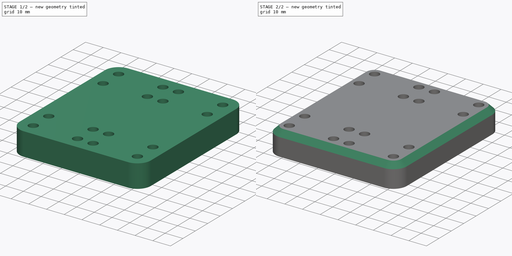
[diagram: build sequence overview — one tinted view per stage of 2, left to right]
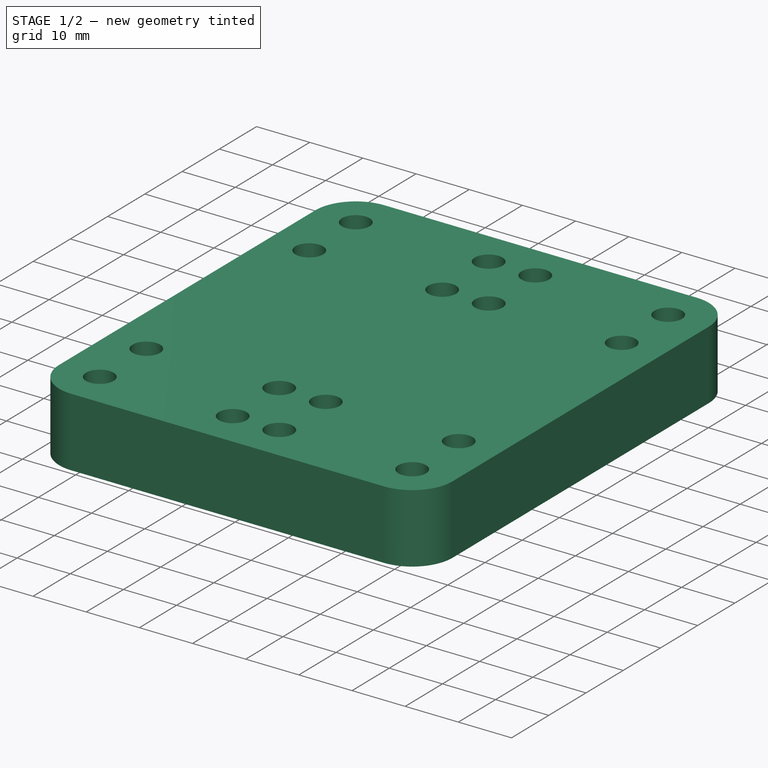
[diagram: stage 1 of 2 — iso view after this stage's code; geometry added in this stage tinted green]
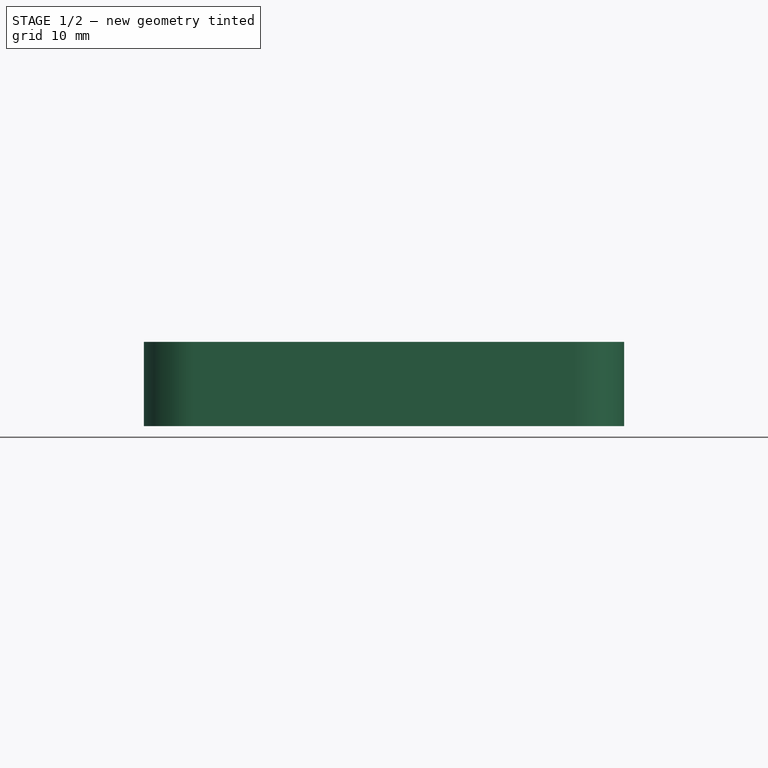
[diagram: stage 1 of 2 — front view after this stage's code; geometry added in this stage tinted green]
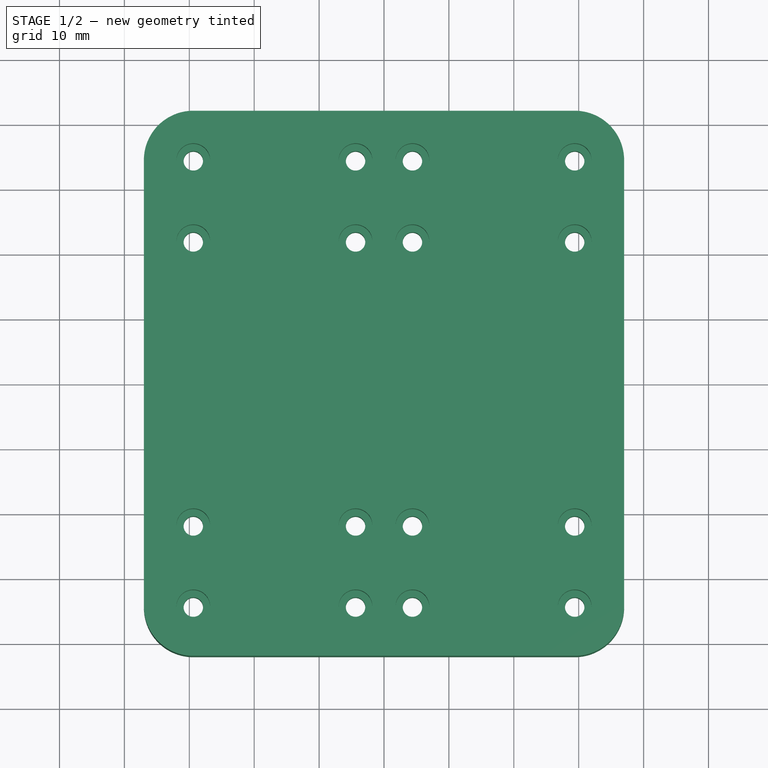
[diagram: stage 1 of 2 — top view after this stage's code; geometry added in this stage tinted green]
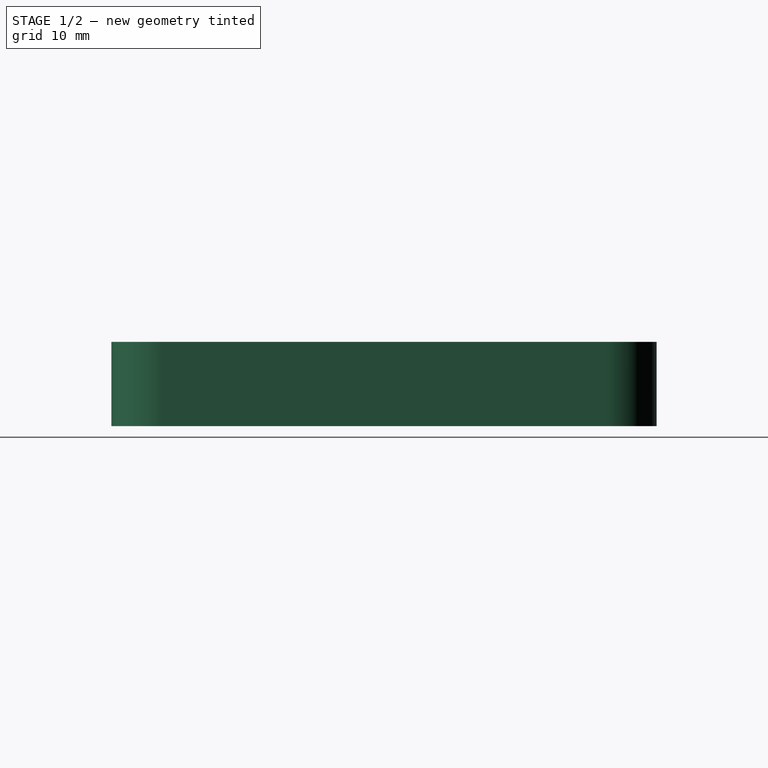
[diagram: stage 1 of 2 — right view after this stage's code; geometry added in this stage tinted green]
FCSTD DOCUMENT  (FreeCAD 0.16R6712 (Git))
Label: Plate_001
License: All rights reserved
LicenseURL: http://en.wikipedia.org/wiki/All_rights_reserved
objects: Sketcher::SketchObject×2, PartDesign::Pad×1, PartDesign::Pocket×1, PartDesign::Chamfer×1
note: 7 computed .brp shape members not serialized (recipe doc carries the construction recipe); baked Part::Feature solids carry a one-line shape summary decoded from their .brp

FEATURE [Sketcher::SketchObject] Sketch002
  Placement = pos=(0,0,13) rot=(0,0,1;0rad)
  sketch-geometry (42):
    g0: Circle CenterX=-29.384 CenterY=-34.384 CenterZ=0 NormalX=0 NormalY=0 NormalZ=1 Radius=1.6
    g1: Circle CenterX=-4.384 CenterY=-34.384 CenterZ=0 NormalX=0 NormalY=0 NormalZ=1 Radius=1.6
    g2: LineSegment [constr] StartX=-29.384 StartY=-34.384 StartZ=0 EndX=-4.384 EndY=-34.384 EndZ=0
    g3: LineSegment [constr] StartX=-4.384 StartY=-34.384 StartZ=0 EndX=-4.384 EndY=-21.884 EndZ=0
    g4: LineSegment [constr] StartX=-4.384 StartY=-21.884 StartZ=0 EndX=-29.384 EndY=-21.884 EndZ=0
    g5: LineSegment [constr] StartX=-29.384 StartY=-21.884 StartZ=0 EndX=-29.384 EndY=-34.384 EndZ=0
    g6: Circle CenterX=-29.384 CenterY=-21.884 CenterZ=0 NormalX=0 NormalY=0 NormalZ=1 Radius=1.6
    g7: Circle CenterX=-4.384 CenterY=-21.884 CenterZ=0 NormalX=0 NormalY=0 NormalZ=1 Radius=1.6
    g8: LineSegment [constr] StartX=4.384 StartY=-34.384 StartZ=0 EndX=4.384 EndY=-21.884 EndZ=0
    g9: LineSegment [constr] StartX=4.384 StartY=-34.384 StartZ=0 EndX=29.384 EndY=-34.384 EndZ=0
    g10: LineSegment [constr] StartX=29.384 StartY=-34.384 StartZ=0 EndX=29.384 EndY=-21.884 EndZ=0
    g11: LineSegment [constr] StartX=29.384 StartY=-21.884 StartZ=0 EndX=4.384 EndY=-21.884 EndZ=0
    g12: Circle CenterX=4.384 CenterY=-21.884 CenterZ=0 NormalX=0 NormalY=0 NormalZ=1 Radius=1.6
    g13: Circle CenterX=4.384 CenterY=-34.384 CenterZ=0 NormalX=0 NormalY=0 NormalZ=1 Radius=1.6
    g14: Circle CenterX=29.384 CenterY=-34.384 CenterZ=0 NormalX=0 NormalY=0 NormalZ=1 Radius=1.6
    g15: Circle CenterX=29.384 CenterY=-21.884 CenterZ=0 NormalX=0 NormalY=0 NormalZ=1 Radius=1.6
    g16: LineSegment StartX=-29.384 StartY=42 StartZ=0 EndX=29.384 EndY=42 EndZ=0
    g17: LineSegment StartX=37 StartY=34.384 StartZ=0 EndX=37 EndY=-34.384 EndZ=0
    g18: ArcOfCircle CenterX=-29.384 CenterY=34.384 CenterZ=0 NormalX=0 NormalY=0 NormalZ=1 Radius=7.616 StartAngle=1.5708 EndAngle=3.14159
    g19: ArcOfCircle CenterX=29.384 CenterY=34.384 CenterZ=0 NormalX=0 NormalY=0 NormalZ=1 Radius=7.616 StartAngle=0 EndAngle=1.5708
    g20: ArcOfCircle CenterX=29.384 CenterY=-34.384 CenterZ=0 NormalX=0 NormalY=0 NormalZ=1 Radius=7.616 StartAngle=4.71239 EndAngle=6.28319
    g21: ArcOfCircle CenterX=-29.384 CenterY=-34.384 CenterZ=0 NormalX=0 NormalY=0 NormalZ=1 Radius=7.616 StartAngle=3.14159 EndAngle=4.71239
    g22: LineSegment StartX=-29.384 StartY=-42 StartZ=0 EndX=0 EndY=-42 EndZ=0
    g23: LineSegment StartX=0 StartY=-42 StartZ=0 EndX=29.384 EndY=-42 EndZ=0
    g24: LineSegment StartX=-37 StartY=34.384 StartZ=0 EndX=-37 EndY=0 EndZ=0
    g25: LineSegment StartX=-37 StartY=-34.384 StartZ=0 EndX=-37 EndY=0 EndZ=0
    g26: LineSegment [constr] StartX=-29.384 StartY=34.384 StartZ=0 EndX=-4.384 EndY=34.384 EndZ=0
    g27: LineSegment [constr] StartX=-4.384 StartY=34.384 StartZ=0 EndX=-4.384 EndY=21.884 EndZ=0
    g28: LineSegment [constr] StartX=-4.384 StartY=21.884 StartZ=0 EndX=-29.384 EndY=21.884 EndZ=0
    g29: LineSegment [constr] StartX=-29.384 StartY=21.884 StartZ=0 EndX=-29.384 EndY=34.384 EndZ=0
    g30: LineSegment [constr] StartX=29.384 StartY=34.384 StartZ=0 EndX=4.384 EndY=34.384 EndZ=0
    g31: LineSegment [constr] StartX=4.384 StartY=34.384 StartZ=0 EndX=4.384 EndY=21.884 EndZ=0
    g32: LineSegment [constr] StartX=4.384 StartY=21.884 StartZ=0 EndX=29.384 EndY=21.884 EndZ=0
    g33: LineSegment [constr] StartX=29.384 StartY=21.884 StartZ=0 EndX=29.384 EndY=34.384 EndZ=0
    g34: Circle CenterX=-29.384 CenterY=21.884 CenterZ=0 NormalX=0 NormalY=0 NormalZ=1 Radius=1.6
    g35: Circle CenterX=-4.384 CenterY=21.884 CenterZ=0 NormalX=0 NormalY=0 NormalZ=1 Radius=1.5
    g36: Circle CenterX=-4.384 CenterY=34.384 CenterZ=0 NormalX=0 NormalY=0 NormalZ=1 Radius=1.5
    g37: Circle CenterX=4.384 CenterY=34.384 CenterZ=0 NormalX=0 NormalY=0 NormalZ=1 Radius=1.5
    g38: Circle CenterX=4.384 CenterY=21.884 CenterZ=0 NormalX=0 NormalY=0 NormalZ=1 Radius=1.5
    g39: Circle CenterX=29.384 CenterY=21.884 CenterZ=0 NormalX=0 NormalY=0 NormalZ=1 Radius=1.5
    g40: Circle CenterX=29.384 CenterY=34.384 CenterZ=0 NormalX=0 NormalY=0 NormalZ=1 Radius=1.5
    g41: Circle CenterX=-29.384 CenterY=34.384 CenterZ=0 NormalX=0 NormalY=0 NormalZ=1 Radius=1.6
  constraints (104):
    c: Radius(g0) = 1.6
    c: DistanceX(g0,g1) = 25
    c: Equal(g0,g1)
    c: Coincident(g2,g3)
    c: Coincident(g3,g4)
    c: Coincident(g4,g5)
    c: Coincident(g5,g2)
    c: Horizontal(g2)
    c: Horizontal(g4)
    c: Vertical(g3)
    c: Vertical(g5)
    c: Coincident(g2,g1)
    c: DistanceY(g5,g5) = 12.5
    c: Coincident(g2,g0)
    c: Coincident(g6,g4)
    c: Coincident(g7,g3)
    c: Equal(g6,g7)
    c: Equal(g7,g0)
    c: Vertical(g8)
    c: Coincident(g9,g10)
    c: Coincident(g10,g11)
    c: Horizontal(g9)
    c: Horizontal(g11)
    c: Vertical(g10)
    c: Coincident(g11,g8)
    c: Coincident(g12,g8)
    c: Coincident(g14,g9)
    c: Coincident(g15,g10)
    c: Equal(g15,g14)
    c: Equal(g14,g13)
    c: Equal(g13,g12)
    c: Equal(g12,g0)
    c: Equal(g8,g5)
    c: Equal(g11,g4)
    c: Coincident(g8,g9)
    c: Coincident(g8,g13)
    c: Horizontal(g16)
    c: Vertical(g17)
    c: Tangent(g16,g18) = 1.5708
    c: Tangent(g16,g19) = 1.5708
    c: Tangent(g17,g19) = 1.5708
    c: Tangent(g17,g20) = 1.5708
    c: Equal(g18,g19)
    c: Equal(g19,g20)
    c: Equal(g20,g21)
    c: Radius(g19) = 7.616
    c: Coincident(g22,g21)
    c: Horizontal(g22)
    c: Coincident(g23,g22)
    c: Coincident(g23,g20)
    c: Horizontal(g23)
    c: Equal(g23,g22)
    c: PointOnObject(g22,g-2)
    c: Coincident(g24,g18)
    c: PointOnObject(g24,g-1)
    c: Vertical(g24)
    c: Coincident(g25,g21)
    c: Coincident(g25,g24)
    c: Vertical(g25)
    c: Tangent(g21,g22)
    c: Tangent(g23,g20)
    c: Tangent(g18,g24)
    c: Tangent(g21,g25)
    c: Equal(g24,g25)
    c: Coincident(g21,g0)
    c: Coincident(g26,g27)
    c: Coincident(g27,g28)
    c: Coincident(g28,g29)
    c: Coincident(g29,g26)
    c: Horizontal(g26)
    c: Horizontal(g28)
    c: Vertical(g27)
    c: Vertical(g29)
    c: Coincident(g26,g18)
    c: Coincident(g30,g31)
    c: Coincident(g31,g32)
    c: Coincident(g32,g33)
    c: Coincident(g33,g30)
    c: Horizontal(g30)
    c: Horizontal(g32)
    c: Vertical(g31)
    c: Vertical(g33)
    c: Coincident(g30,g19)
    c: Coincident(g9,g20)
    c: Equal(g5,g29)
    c: Equal(g29,g31)
    c: Equal(g28,g32)
    c: Equal(g32,g4)
    c: DistanceY(g20,g16) = 84
    c: DistanceX(g21,g17) = 74
    c: Coincident(g34,g28)
    c: Coincident(g35,g27)
    c: Coincident(g36,g26)
    c: Coincident(g37,g30)
    c: Coincident(g39,g32)
    c: Coincident(g40,g19)
    c: Equal(g39,g40)
    c: Equal(g40,g37)
    c: Equal(g37,g38)
    c: Equal(g38,g36)
    c: Equal(g36,g35)
    c: Equal(g34,g0)
    c: Coincident(g41,g18)
    c: Equal(g41,g34)
FEATURE [PartDesign::Pad] Pad
  Length = 13
  Length2 = 100
  Placement = pos=(0,0,13) rot=(0,0,1;0rad)
  Sketch = -> Sketch002
  Type = 0
FEATURE [Sketcher::SketchObject] Sketch
  ExternalGeometry = -> [Pad]
  Placement = pos=(0,0,26) rot=(0,0,1;0rad)
  Support = -> Pad [Face28]
  sketch-geometry (33):
    g0: Circle CenterX=-29.384 CenterY=34.384 CenterZ=0 NormalX=0 NormalY=0 NormalZ=1 Radius=2.6
    g1: Circle CenterX=4.384 CenterY=-34.384 CenterZ=0 NormalX=0 NormalY=0 NormalZ=1 Radius=2.6
    g2: Circle CenterX=29.384 CenterY=21.884 CenterZ=0 NormalX=0 NormalY=0 NormalZ=1 Radius=2.6
    g3: Circle CenterX=-29.384 CenterY=21.884 CenterZ=0 NormalX=0 NormalY=0 NormalZ=1 Radius=2.6
    g4: Circle CenterX=-29.384 CenterY=-34.384 CenterZ=0 NormalX=0 NormalY=0 NormalZ=1 Radius=2.6
    g5: Circle CenterX=4.384 CenterY=-21.884 CenterZ=0 NormalX=0 NormalY=0 NormalZ=1 Radius=2.6
    g6: Circle CenterX=29.384 CenterY=-34.384 CenterZ=0 NormalX=0 NormalY=0 NormalZ=1 Radius=2.6
    g7: Circle CenterX=-29.384 CenterY=-21.884 CenterZ=0 NormalX=0 NormalY=0 NormalZ=1 Radius=2.6
    g8: Circle CenterX=-29.384 CenterY=-34.384 CenterZ=0 NormalX=0 NormalY=0 NormalZ=1 Radius=2.6
    g9: Circle CenterX=-4.384 CenterY=34.384 CenterZ=0 NormalX=0 NormalY=0 NormalZ=1 Radius=2.6
    g10: Circle CenterX=4.384 CenterY=34.384 CenterZ=0 NormalX=0 NormalY=0 NormalZ=1 Radius=2.6
    g11: Circle CenterX=29.384 CenterY=34.384 CenterZ=0 NormalX=0 NormalY=0 NormalZ=1 Radius=2.6
    g12: Circle CenterX=4.384 CenterY=21.884 CenterZ=0 NormalX=0 NormalY=0 NormalZ=1 Radius=2.6
    g13: Circle CenterX=-4.384 CenterY=21.884 CenterZ=0 NormalX=0 NormalY=0 NormalZ=1 Radius=2.6
    g14: LineSegment [constr] StartX=-29.384 StartY=-34.384 StartZ=0 EndX=-4.384 EndY=-34.384 EndZ=0
    g15: LineSegment [constr] StartX=-4.384 StartY=-34.384 StartZ=0 EndX=-4.384 EndY=-21.884 EndZ=0
    g16: LineSegment [constr] StartX=-4.384 StartY=-21.884 StartZ=0 EndX=-29.384 EndY=-21.884 EndZ=0
    g17: LineSegment [constr] StartX=-29.384 StartY=-21.884 StartZ=0 EndX=-29.384 EndY=-34.384 EndZ=0
    g18: LineSegment [constr] StartX=-29.384 StartY=34.384 StartZ=0 EndX=-4.384 EndY=34.384 EndZ=0
    g19: LineSegment [constr] StartX=-4.384 StartY=34.384 StartZ=0 EndX=-4.384 EndY=21.884 EndZ=0
    g20: LineSegment [constr] StartX=-4.384 StartY=21.884 StartZ=0 EndX=-29.384 EndY=21.884 EndZ=0
    g21: LineSegment [constr] StartX=-29.384 StartY=21.884 StartZ=0 EndX=-29.384 EndY=34.384 EndZ=0
    g22: LineSegment [constr] StartX=29.384 StartY=34.384 StartZ=0 EndX=4.384 EndY=34.384 EndZ=0
    g23: LineSegment [constr] StartX=4.384 StartY=34.384 StartZ=0 EndX=4.384 EndY=21.884 EndZ=0
    g24: LineSegment [constr] StartX=4.384 StartY=21.884 StartZ=0 EndX=29.384 EndY=21.884 EndZ=0
    g25: LineSegment [constr] StartX=29.384 StartY=21.884 StartZ=0 EndX=29.384 EndY=34.384 EndZ=0
    g26: LineSegment [constr] StartX=29.384 StartY=-34.384 StartZ=0 EndX=4.384 EndY=-34.384 EndZ=0
    g27: LineSegment [constr] StartX=4.384 StartY=-34.384 StartZ=0 EndX=4.384 EndY=-21.884 EndZ=0
    g28: LineSegment [constr] StartX=4.384 StartY=-21.884 StartZ=0 EndX=29.384 EndY=-21.884 EndZ=0
    g29: LineSegment [constr] StartX=29.384 StartY=-21.884 StartZ=0 EndX=29.384 EndY=-34.384 EndZ=0
    g30: Circle CenterX=-4.384 CenterY=-21.884 CenterZ=0 NormalX=0 NormalY=0 NormalZ=1 Radius=2.6
    g31: Circle CenterX=29.384 CenterY=-21.884 CenterZ=0 NormalX=0 NormalY=0 NormalZ=1 Radius=2.6
    g32: Circle CenterX=-4.384 CenterY=-34.384 CenterZ=0 NormalX=0 NormalY=0 NormalZ=1 Radius=2.6
  constraints (76):
    c: Equal(g1,g2)
    c: Equal(g2,g3)
    c: Equal(g3,g4)
    c: Equal(g4,g5)
    c: Equal(g5,g6)
    c: Equal(g6,g7)
    c: Equal(g0,g7)
    c: Radius(g8) = 2.6
    c: Equal(g7,g8)
    c: Coincident(g0,g-4)
    c: Equal(g0,g10)
    c: Equal(g10,g13)
    c: Equal(g13,g11)
    c: Equal(g11,g12)
    c: Coincident(g14,g15)
    c: Coincident(g15,g16)
    c: Coincident(g16,g17)
    c: Coincident(g17,g14)
    c: Horizontal(g14)
    c: Horizontal(g16)
    c: Vertical(g15)
    c: Vertical(g17)
    c: Coincident(g14,g4)
    c: Coincident(g15,g-15)
    c: Coincident(g4,g-7)
    c: Coincident(g8,g4)
    c: Coincident(g18,g19)
    c: Coincident(g19,g20)
    c: Coincident(g20,g21)
    c: Coincident(g21,g18)
    c: Horizontal(g18)
    c: Horizontal(g20)
    c: Vertical(g19)
    c: Vertical(g21)
    c: Coincident(g18,g0)
    c: Coincident(g19,g-16)
    c: Coincident(g22,g23)
    c: Coincident(g23,g24)
    c: Coincident(g24,g25)
    c: Coincident(g25,g22)
    c: Horizontal(g22)
    c: Horizontal(g24)
    c: Vertical(g23)
    c: Vertical(g25)
    c: Coincident(g22,g-12)
    c: Coincident(g26,g27)
    c: Coincident(g27,g28)
    c: Coincident(g28,g29)
    c: Coincident(g29,g26)
    c: Horizontal(g26)
    c: Horizontal(g28)
    c: Vertical(g27)
    c: Vertical(g29)
    c: Coincident(g-10,g26)
    c: Equal(g15,g27)
    c: Equal(g27,g23)
    c: Equal(g24,g28)
    c: Equal(g28,g16)
    c: Coincident(g9,g18)
    c: Coincident(g13,g19)
    c: Coincident(g3,g20)
    c: Coincident(g12,g23)
    c: Coincident(g10,g22)
    c: Coincident(g11,g22)
    c: Coincident(g2,g24)
    c: Equal(g9,g4)
    c: Coincident(g5,g27)
    c: Coincident(g7,g16)
    c: Coincident(g1,g26)
    c: Coincident(g26,g6)
    c: Coincident(g30,g15)
    c: Coincident(g31,g28)
    c: Coincident(g32,g14)
    c: Equal(g30,g32)
    c: Equal(g32,g31)
    c: Equal(g31,g4)
FEATURE [PartDesign::Pocket] Pocket
  Length = 6
  Placement = pos=(0,0,13) rot=(0,0,1;0rad)
  Sketch = -> Sketch
  Type = 0
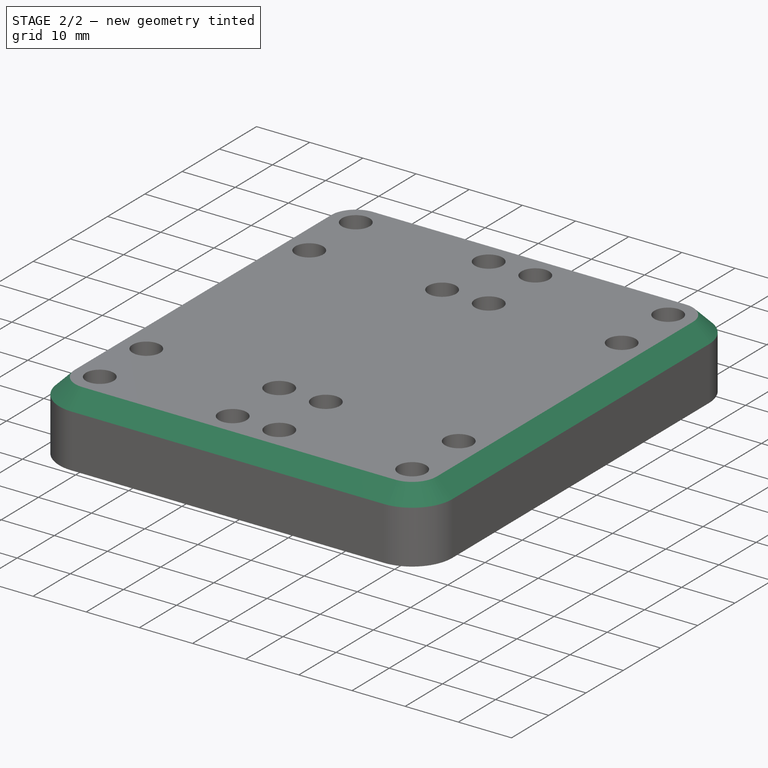
[diagram: stage 2 of 2 — iso view after this stage's code; geometry added in this stage tinted green]
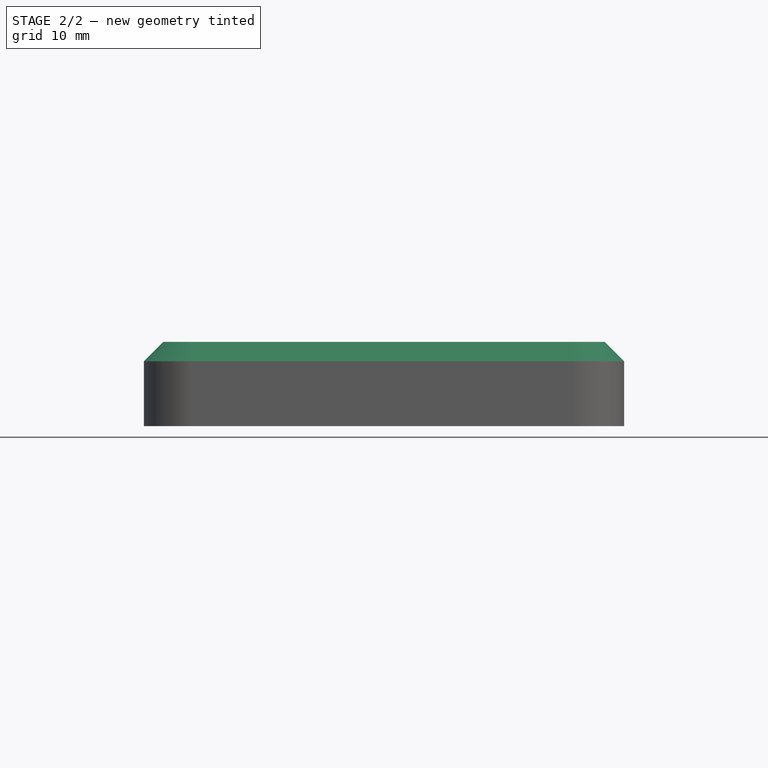
[diagram: stage 2 of 2 — front view after this stage's code; geometry added in this stage tinted green]
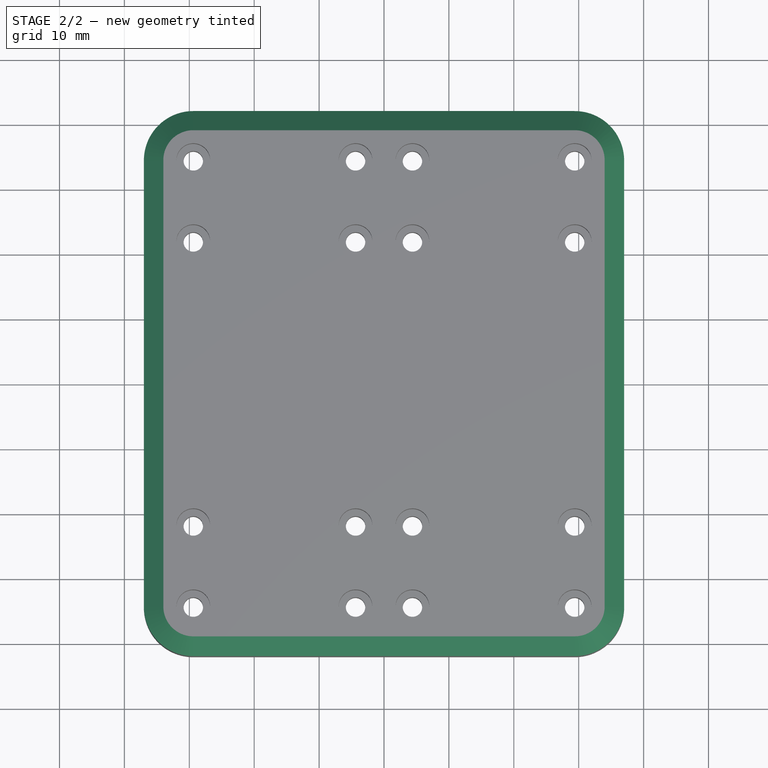
[diagram: stage 2 of 2 — top view after this stage's code; geometry added in this stage tinted green]
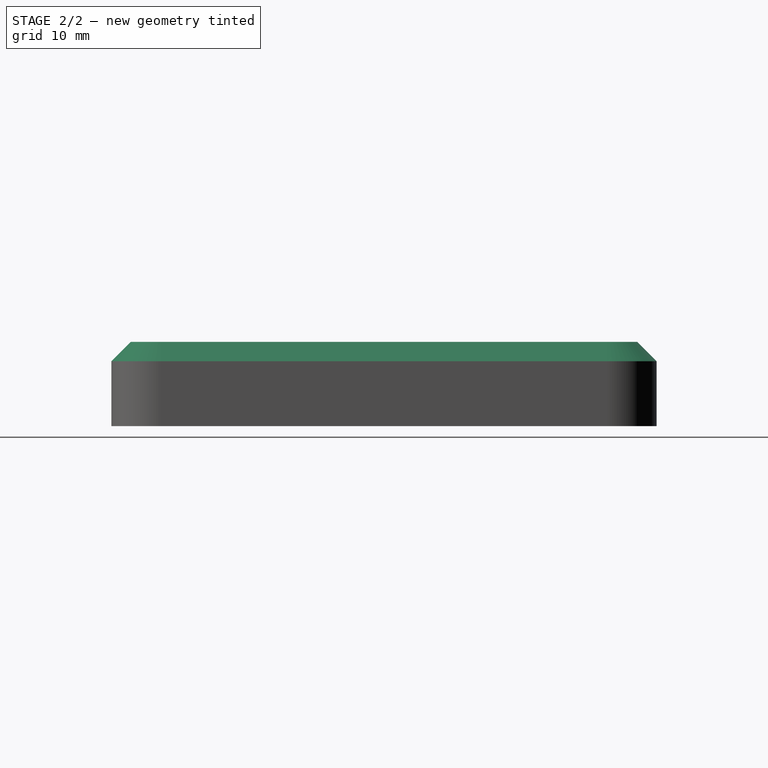
[diagram: stage 2 of 2 — right view after this stage's code; geometry added in this stage tinted green]
FEATURE [PartDesign::Chamfer] Chamfer
  Base = -> Pocket [Edge39]
  Placement = pos=(0,0,13) rot=(0,0,1;0rad)
  Size = 3
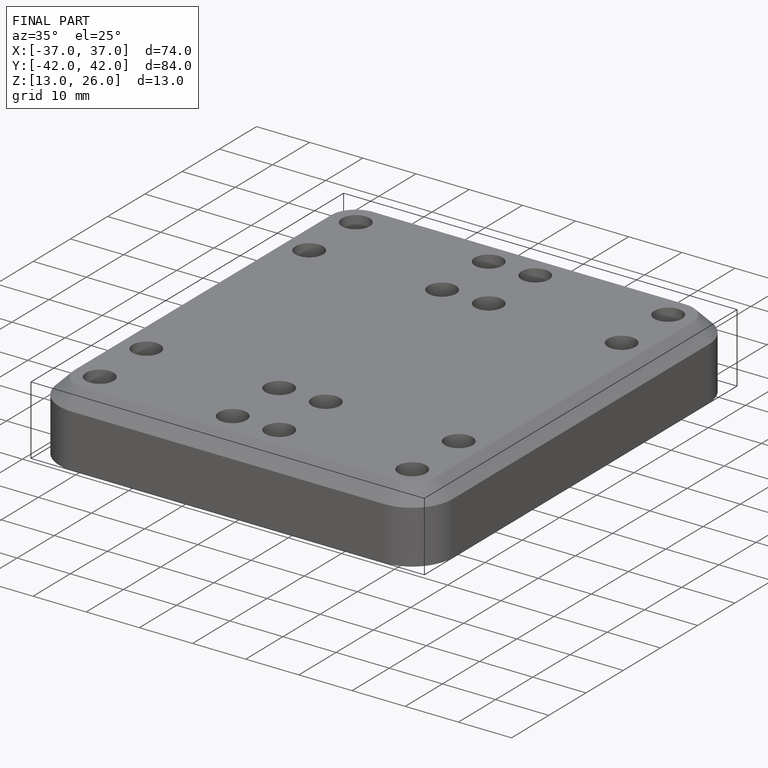
[diagram: finished part — iso view with bounding-box wireframe]
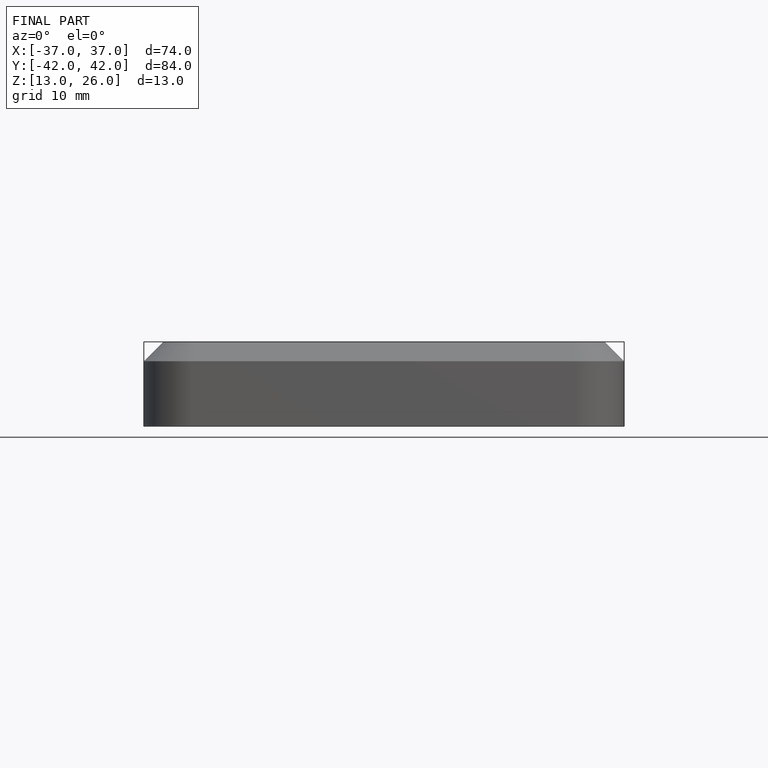
[diagram: finished part — front view with bounding-box wireframe]
